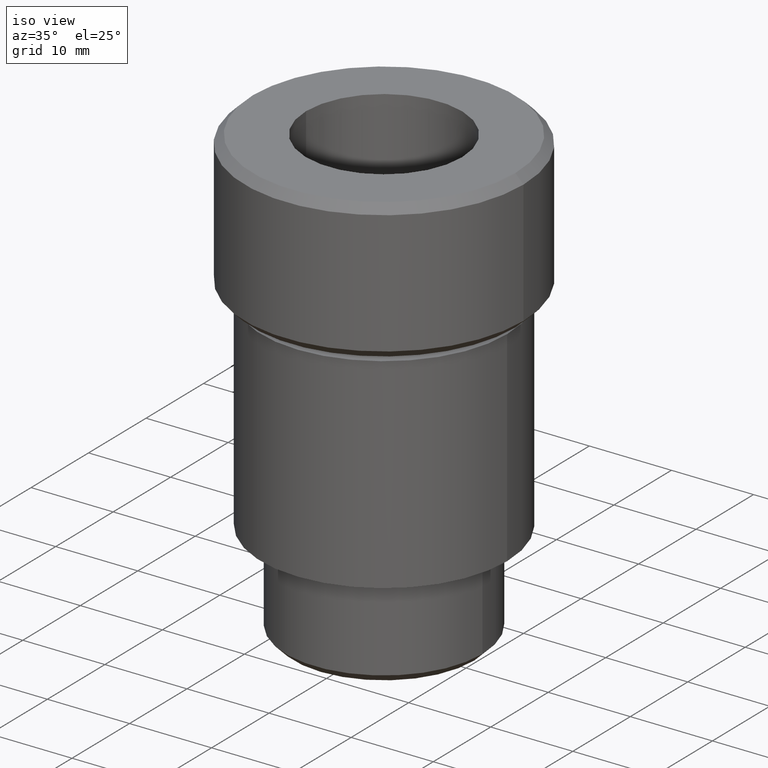
[diagram: clean part render]
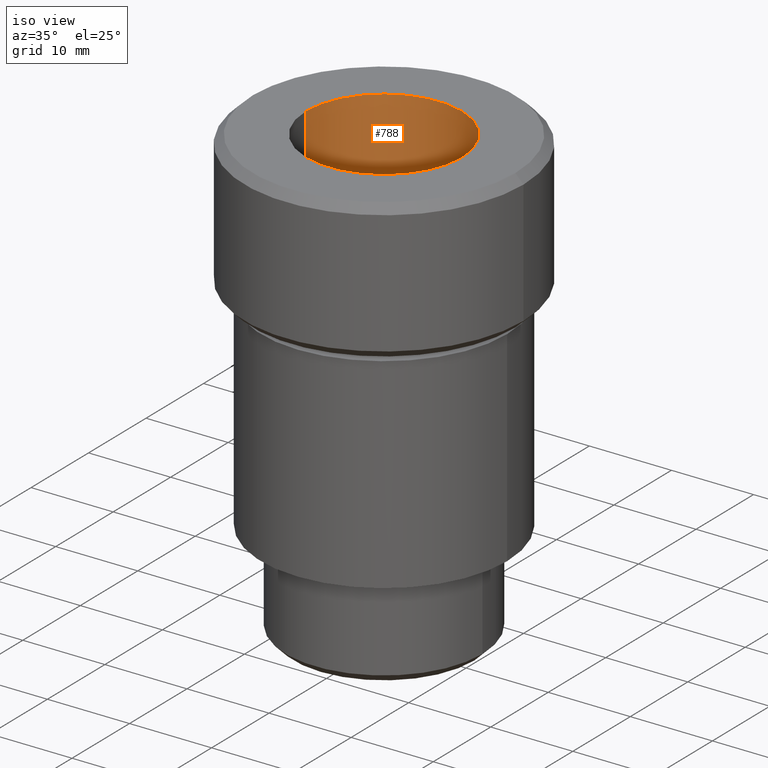
[diagram: same view with one face highlighted and labeled with its STEP entity id]
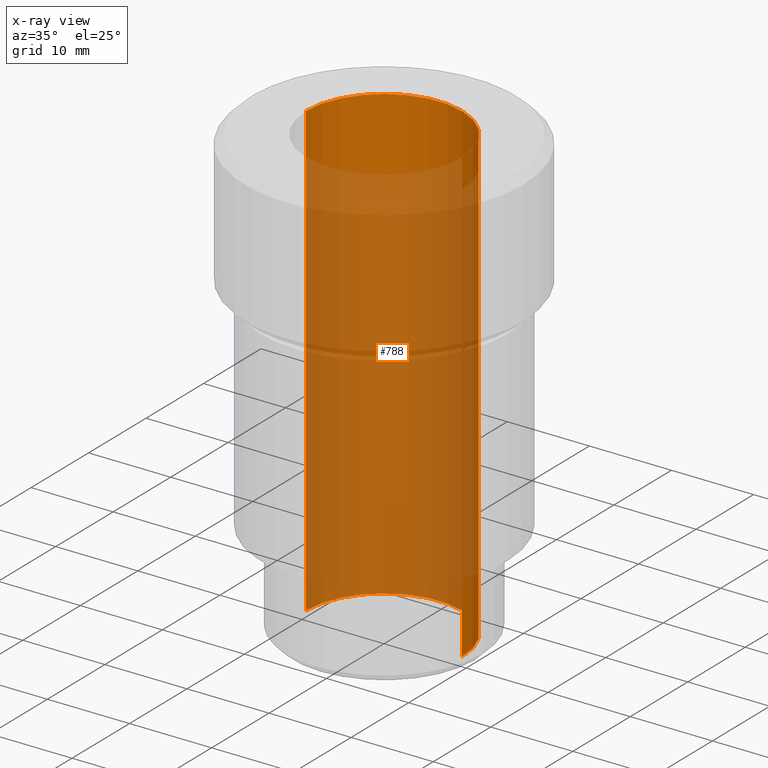
[diagram: x-ray of the same camera — body ghosted, the highlighted face saturated]
A machine part, iso view. The second image highlights one B-rep face of the part: STEP entity #788.
The next image is the same camera in x-ray: the body ghosted, the highlighted face saturated — about 85% of this face is hidden behind the body in this view.
In plain terms, the highlighted cylindrical surface (partial cylindrical patch) has radius 9.5 mm, axis along (-0, -0, 1).
Its self-contained STEP definition (entity closure, byte-faithful):
#1 = CARTESIAN_POINT ( 'NONE',  ( -9.500000000000000000, 1.163414459189985485E-15, 0.000000000000000000 ) ) ;
#2 = ORIENTED_EDGE ( 'NONE', *, *, #283, .F. ) ;
#16 = CARTESIAN_POINT ( 'NONE',  ( 0.000000000000000000, 0.000000000000000000, -54.99999999999999289 ) ) ;
#51 = EDGE_LOOP ( 'NONE', ( #2, #596, #492, #331 ) ) ;
#60 = AXIS2_PLACEMENT_3D ( 'NONE', #16, #321, #199 ) ;
#82 = VECTOR ( 'NONE', #658, 1000.000000000000000 ) ;
#143 = VERTEX_POINT ( 'NONE', #770 ) ;
#148 = CARTESIAN_POINT ( 'NONE',  ( 0.000000000000000000, 0.000000000000000000, -54.99999999999999289 ) ) ;
#173 = EDGE_CURVE ( 'NONE', #143, #732, #463, .T. ) ;
#180 = CIRCLE ( 'NONE', #286, 9.500000000000000000 ) ;
#181 = CARTESIAN_POINT ( 'NONE',  ( 0.000000000000000000, 0.000000000000000000, 0.000000000000000000 ) ) ;
#199 = DIRECTION ( 'NONE',  ( 1.000000000000000000, 0.000000000000000000, 0.000000000000000000 ) ) ;
#231 = CARTESIAN_POINT ( 'NONE',  ( 9.500000000000000000, 0.000000000000000000, 0.000000000000000000 ) ) ;
#267 = FACE_OUTER_BOUND ( 'NONE', #51, .T. ) ;
#275 = AXIS2_PLACEMENT_3D ( 'NONE', #148, #570, #508 ) ;
#283 = EDGE_CURVE ( 'NONE', #746, #496, #428, .T. ) ;
#286 = AXIS2_PLACEMENT_3D ( 'NONE', #181, #427, #482 ) ;
#321 = DIRECTION ( 'NONE',  ( -0.000000000000000000, -0.000000000000000000, 1.000000000000000000 ) ) ;
#331 = ORIENTED_EDGE ( 'NONE', *, *, #390, .T. ) ;
#390 = EDGE_CURVE ( 'NONE', #732, #496, #180, .T. ) ;
#409 = VECTOR ( 'NONE', #766, 1000.000000000000000 ) ;
#425 = CIRCLE ( 'NONE', #275, 9.500000000000000000 ) ;
#427 = DIRECTION ( 'NONE',  ( -0.000000000000000000, -0.000000000000000000, 1.000000000000000000 ) ) ;
#428 = LINE ( 'NONE', #483, #82 ) ;
#463 = LINE ( 'NONE', #523, #409 ) ;
#482 = DIRECTION ( 'NONE',  ( 1.000000000000000000, 0.000000000000000000, 0.000000000000000000 ) ) ;
#483 = CARTESIAN_POINT ( 'NONE',  ( -9.500000000000000000, 1.163414459189985485E-15, -54.99999999999999289 ) ) ;
#492 = ORIENTED_EDGE ( 'NONE', *, *, #173, .T. ) ;
#496 = VERTEX_POINT ( 'NONE', #1 ) ;
#508 = DIRECTION ( 'NONE',  ( 1.000000000000000000, 0.000000000000000000, 0.000000000000000000 ) ) ;
#523 = CARTESIAN_POINT ( 'NONE',  ( 9.500000000000000000, 0.000000000000000000, -54.99999999999999289 ) ) ;
#570 = DIRECTION ( 'NONE',  ( 0.000000000000000000, 0.000000000000000000, 1.000000000000000000 ) ) ;
#596 = ORIENTED_EDGE ( 'NONE', *, *, #782, .F. ) ;
#658 = DIRECTION ( 'NONE',  ( -0.000000000000000000, -0.000000000000000000, 1.000000000000000000 ) ) ;
#716 = CARTESIAN_POINT ( 'NONE',  ( -9.500000000000000000, 1.163414459189985485E-15, -54.99999999999999289 ) ) ;
#732 = VERTEX_POINT ( 'NONE', #231 ) ;
#746 = VERTEX_POINT ( 'NONE', #716 ) ;
#751 = CYLINDRICAL_SURFACE ( 'NONE', #60, 9.500000000000000000 ) ;
#766 = DIRECTION ( 'NONE',  ( -0.000000000000000000, -0.000000000000000000, 1.000000000000000000 ) ) ;
#770 = CARTESIAN_POINT ( 'NONE',  ( 9.500000000000000000, 0.000000000000000000, -54.99999999999999289 ) ) ;
#782 = EDGE_CURVE ( 'NONE', #143, #746, #425, .T. ) ;
#788 = ADVANCED_FACE ( 'NONE', ( #267 ), #751, .F. ) ;